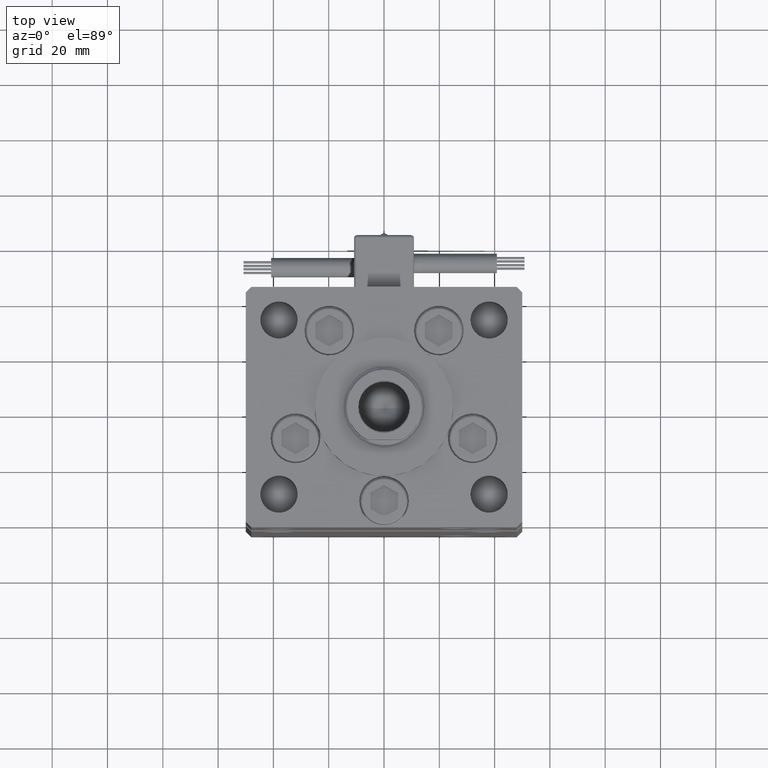
[diagram: clean part render]
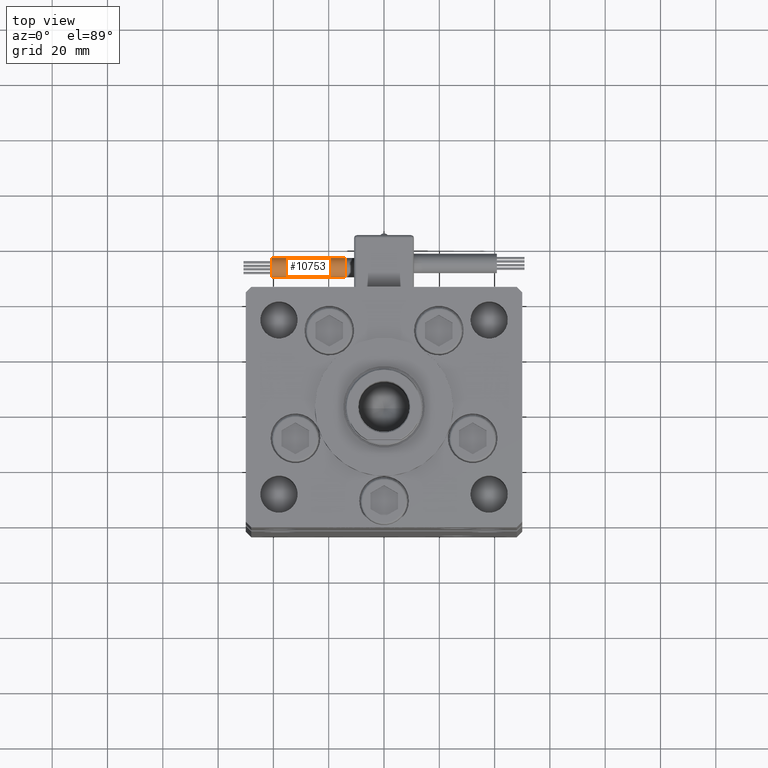
[diagram: same view with one face highlighted and labeled with its STEP entity id]
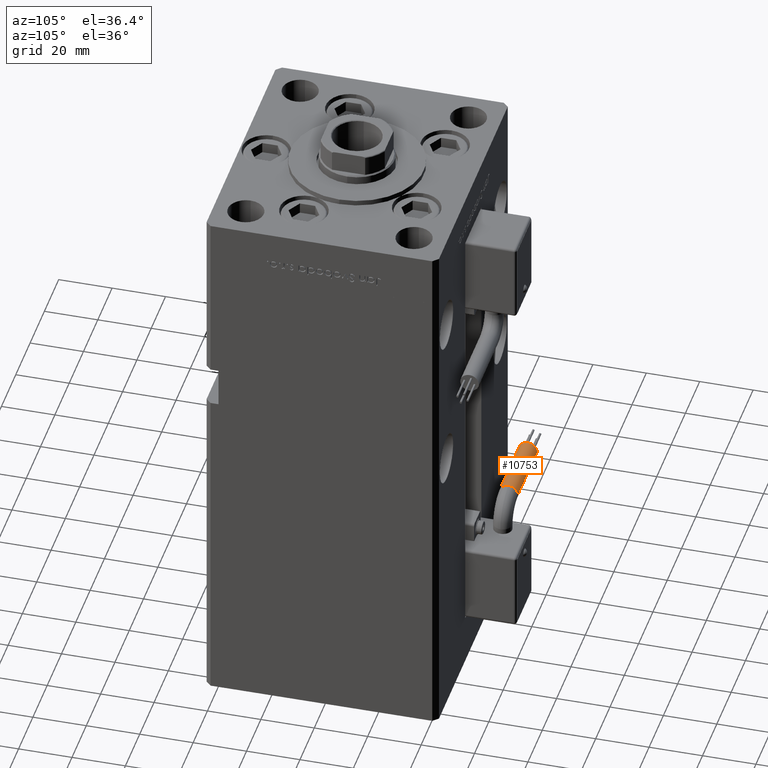
[diagram: same view with one face highlighted and labeled with its STEP entity id]
A machine part, top view. The second image highlights one B-rep face of the part: STEP entity #10753.
A second angle (auxiliary view) of the same face is appended — the face is thin or edge-on in the first view.
In plain terms, the highlighted cylindrical surface (edge-blend (fillet) strip) has radius 3.5 mm, axis along (-1, -0, -0).
Its self-contained STEP definition (entity closure, byte-faithful):
#497 = ORIENTED_EDGE ( 'NONE', *, *, #2005, .T. ) ;
#2005 = EDGE_CURVE ( 'NONE', #55230, #34148, #11235, .T. ) ;
#4935 = FACE_OUTER_BOUND ( 'NONE', #9090, .T. ) ;
#6717 = LINE ( 'NONE', #32952, #55261 ) ;
#9090 = EDGE_LOOP ( 'NONE', ( #17729, #51704, #497, #33966, #16169 ) ) ;
#10753 = ADVANCED_FACE ( 'NONE', ( #4935 ), #34878, .T. ) ;
#10848 = AXIS2_PLACEMENT_3D ( 'NONE', #51392, #12305, #16860 ) ;
#11235 = LINE ( 'NONE', #28638, #55404 ) ;
#11702 = CIRCLE ( 'NONE', #22549, 3.500000000000003109 ) ;
#12305 = DIRECTION ( 'NONE',  ( 1.000000000000000000, 0.000000000000000000, 2.220446049250000002E-16 ) ) ;
#14354 = VERTEX_POINT ( 'NONE', #43153 ) ;
#16169 = ORIENTED_EDGE ( 'NONE', *, *, #21146, .F. ) ;
#16572 = DIRECTION ( 'NONE',  ( 1.000000000000000000, 0.000000000000000000, 2.220446049250000002E-16 ) ) ;
#16860 = DIRECTION ( 'NONE',  ( 0.000000000000000000, 0.000000000000000000, -1.000000000000000000 ) ) ;
#17649 = EDGE_CURVE ( 'NONE', #14354, #34148, #46966, .T. ) ;
#17729 = ORIENTED_EDGE ( 'NONE', *, *, #51778, .T. ) ;
#19969 = CIRCLE ( 'NONE', #10848, 3.500000000000003109 ) ;
#20354 = DIRECTION ( 'NONE',  ( 1.000000000000000000, 0.000000000000000000, 2.220446049250000002E-16 ) ) ;
#21146 = EDGE_CURVE ( 'NONE', #40331, #14354, #6717, .T. ) ;
#22549 = AXIS2_PLACEMENT_3D ( 'NONE', #51375, #16572, #54518 ) ;
#23804 = CARTESIAN_POINT ( 'NONE',  ( 40.80000000000000426, 42.00000000000000000, -65.00000000000000000 ) ) ;
#27722 = AXIS2_PLACEMENT_3D ( 'NONE', #56269, #39159, #48005 ) ;
#28638 = CARTESIAN_POINT ( 'NONE',  ( 13.80000000000000071, 45.50000000000000711, -65.00000000000000000 ) ) ;
#28796 = CARTESIAN_POINT ( 'NONE',  ( 13.79999999999999893, 38.50000000000000000, -65.00000000000000000 ) ) ;
#28972 = CARTESIAN_POINT ( 'NONE',  ( 13.79999999999999893, 45.50000000000000711, -65.00000000000000000 ) ) ;
#31295 = DIRECTION ( 'NONE',  ( 0.000000000000000000, 0.000000000000000000, -1.000000000000000000 ) ) ;
#32108 = DIRECTION ( 'NONE',  ( 1.000000000000000000, -2.599999999999999847E-16, 2.220446049250000002E-16 ) ) ;
#32952 = CARTESIAN_POINT ( 'NONE',  ( 13.79999999999999716, 38.50000000000000000, -65.00000000000000000 ) ) ;
#33966 = ORIENTED_EDGE ( 'NONE', *, *, #17649, .F. ) ;
#34148 = VERTEX_POINT ( 'NONE', #39604 ) ;
#34878 = CYLINDRICAL_SURFACE ( 'NONE', #27722, 3.500000000000003109 ) ;
#35145 = DIRECTION ( 'NONE',  ( 1.000000000000000000, -2.599999999999999847E-16, 2.220446049250000002E-16 ) ) ;
#39159 = DIRECTION ( 'NONE',  ( 1.000000000000000000, -2.599999999999999847E-16, 2.220446049250000002E-16 ) ) ;
#39604 = CARTESIAN_POINT ( 'NONE',  ( 40.80000000000000426, 45.50000000000000711, -65.00000000000000000 ) ) ;
#39680 = AXIS2_PLACEMENT_3D ( 'NONE', #23804, #20354, #31295 ) ;
#40331 = VERTEX_POINT ( 'NONE', #28796 ) ;
#41134 = CARTESIAN_POINT ( 'NONE',  ( 13.79999999999999893, 42.00000000000000000, -68.50000000000000000 ) ) ;
#43153 = CARTESIAN_POINT ( 'NONE',  ( 40.80000000000000426, 38.50000000000000000, -65.00000000000000000 ) ) ;
#46966 = CIRCLE ( 'NONE', #39680, 3.500000000000003109 ) ;
#47139 = VERTEX_POINT ( 'NONE', #41134 ) ;
#47212 = EDGE_CURVE ( 'NONE', #47139, #55230, #11702, .T. ) ;
#48005 = DIRECTION ( 'NONE',  ( -4.956352788505158337E-16, -1.000000000000000000, 0.000000000000000000 ) ) ;
#51375 = CARTESIAN_POINT ( 'NONE',  ( 13.79999999999999893, 42.00000000000000000, -65.00000000000000000 ) ) ;
#51392 = CARTESIAN_POINT ( 'NONE',  ( 13.79999999999999893, 42.00000000000000000, -65.00000000000000000 ) ) ;
#51704 = ORIENTED_EDGE ( 'NONE', *, *, #47212, .T. ) ;
#51778 = EDGE_CURVE ( 'NONE', #40331, #47139, #19969, .T. ) ;
#54518 = DIRECTION ( 'NONE',  ( 0.000000000000000000, 0.000000000000000000, -1.000000000000000000 ) ) ;
#55230 = VERTEX_POINT ( 'NONE', #28972 ) ;
#55261 = VECTOR ( 'NONE', #32108, 1000.000000000000000 ) ;
#55404 = VECTOR ( 'NONE', #35145, 1000.000000000000000 ) ;
#56269 = CARTESIAN_POINT ( 'NONE',  ( 13.79999999999999893, 42.00000000000000000, -65.00000000000000000 ) ) ;